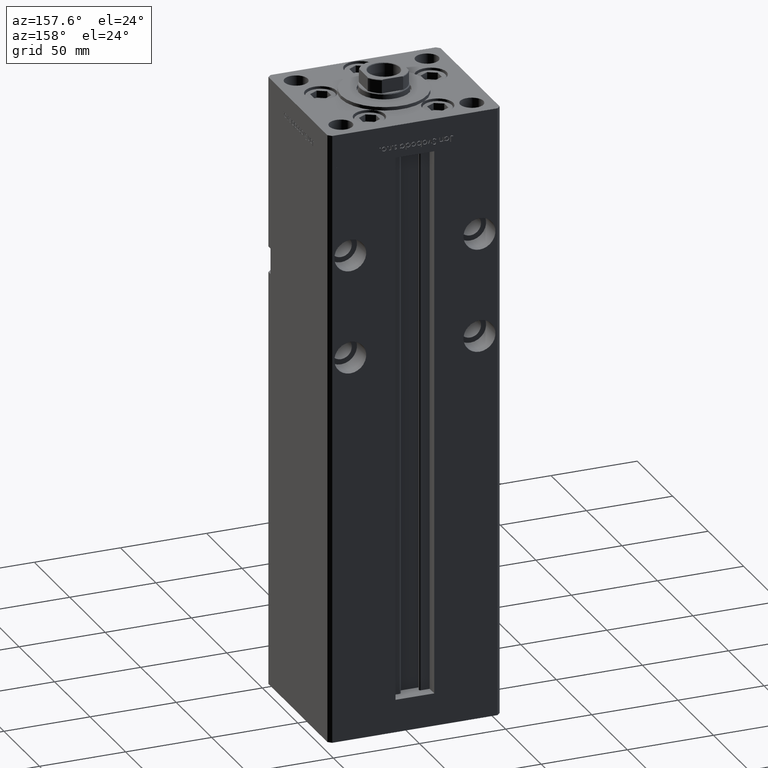
[diagram: clean part render]
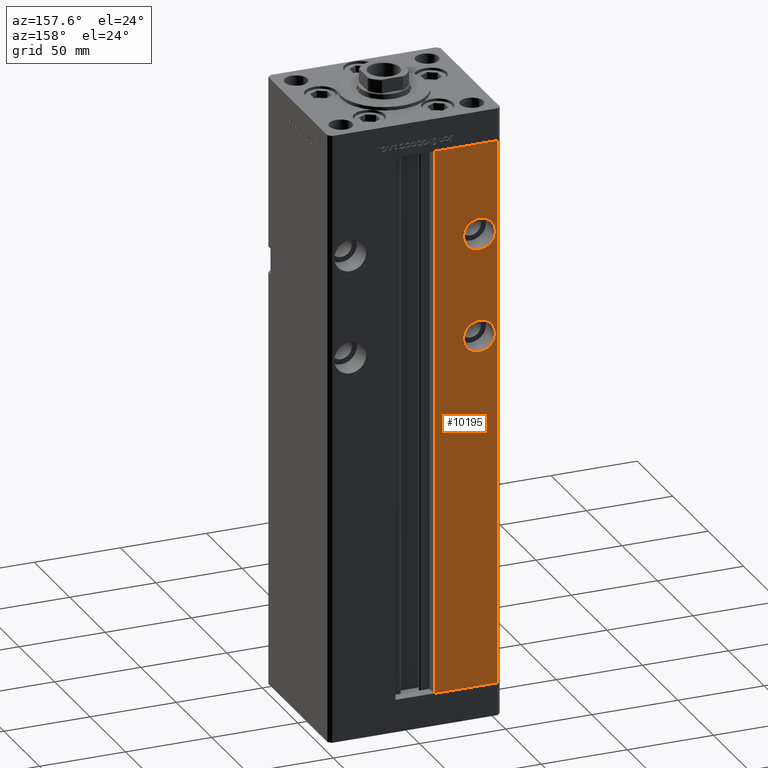
[diagram: same view with one face highlighted and labeled with its STEP entity id]
A machine part, auxiliary view. The second image highlights one B-rep face of the part: STEP entity #10195.
In plain terms, the highlighted planar face has unit normal (0, -1, 0).
Its self-contained STEP definition (entity closure, byte-faithful):
#553 = CARTESIAN_POINT ( 'NONE',  ( -37.50000000000000000, 43.50000000000000000, 265.5000000000000000 ) ) ;
#641 = VERTEX_POINT ( 'NONE', #5674 ) ;
#815 = DIRECTION ( 'NONE',  ( 0.000000000000000000, -0.000000000000000000, -1.000000000000000000 ) ) ;
#1327 = DIRECTION ( 'NONE',  ( 0.000000000000000000, -1.000000000000000000, 0.000000000000000000 ) ) ;
#1549 = VERTEX_POINT ( 'NONE', #12447 ) ;
#1849 = PLANE ( 'NONE',  #24308 ) ;
#2871 = VERTEX_POINT ( 'NONE', #32890 ) ;
#3525 = DIRECTION ( 'NONE',  ( 0.000000000000000000, 1.000000000000000000, -0.000000000000000000 ) ) ;
#3675 = DIRECTION ( 'NONE',  ( 1.000000000000000000, 0.000000000000000000, 0.000000000000000000 ) ) ;
#3677 = VECTOR ( 'NONE', #11993, 1000.000000000000000 ) ;
#3762 = CARTESIAN_POINT ( 'NONE',  ( -37.50000000000000000, 43.50000000000000000, 274.7500000000000000 ) ) ;
#4140 = AXIS2_PLACEMENT_3D ( 'NONE', #29942, #9773, #5495 ) ;
#5495 = DIRECTION ( 'NONE',  ( 0.000000000000000000, 0.000000000000000000, 1.000000000000000000 ) ) ;
#5674 = CARTESIAN_POINT ( 'NONE',  ( -11.24999999999999645, 43.50000000000000000, 0.000000000000000000 ) ) ;
#7331 = EDGE_CURVE ( 'NONE', #18828, #25857, #8427, .T. ) ;
#7979 = ORIENTED_EDGE ( 'NONE', *, *, #23607, .F. ) ;
#8007 = EDGE_CURVE ( 'NONE', #641, #2871, #43972, .T. ) ;
#8427 = CIRCLE ( 'NONE', #27295, 9.249999999999980460 ) ;
#9773 = DIRECTION ( 'NONE',  ( 0.000000000000000000, 1.000000000000000000, 0.000000000000000000 ) ) ;
#9817 = EDGE_LOOP ( 'NONE', ( #16014, #24897, #30269, #22585 ) ) ;
#10195 = ADVANCED_FACE ( 'NONE', ( #33589, #22286, #38669 ), #1849, .F. ) ;
#10507 = CARTESIAN_POINT ( 'NONE',  ( -37.50000000000000000, 43.50000000000000000, 205.5000000000000284 ) ) ;
#11993 = DIRECTION ( 'NONE',  ( -0.000000000000000000, -0.000000000000000000, 1.000000000000000000 ) ) ;
#12447 = CARTESIAN_POINT ( 'NONE',  ( -37.50000000000000000, 43.50000000000000000, 214.7500000000000284 ) ) ;
#14288 = CARTESIAN_POINT ( 'NONE',  ( -37.50000000000000000, 43.50000000000000000, 265.5000000000000000 ) ) ;
#14562 = CARTESIAN_POINT ( 'NONE',  ( -48.00000000000000711, 43.50000000000000000, 318.5000000000000000 ) ) ;
#15230 = CARTESIAN_POINT ( 'NONE',  ( -11.24999999999999645, 43.50000000000000000, 0.000000000000000000 ) ) ;
#16014 = ORIENTED_EDGE ( 'NONE', *, *, #51168, .T. ) ;
#16951 = CIRCLE ( 'NONE', #48713, 9.249999999999980460 ) ;
#17420 = CARTESIAN_POINT ( 'NONE',  ( -11.24999999999999645, 43.50000000000000000, 0.000000000000000000 ) ) ;
#18828 = VERTEX_POINT ( 'NONE', #26824 ) ;
#19989 = CARTESIAN_POINT ( 'NONE',  ( -37.50000000000000000, 43.50000000000000000, 196.2500000000000000 ) ) ;
#20061 = LINE ( 'NONE', #34204, #22669 ) ;
#20477 = CARTESIAN_POINT ( 'NONE',  ( -48.00000000000000711, 43.50000000000000000, 0.000000000000000000 ) ) ;
#20782 = EDGE_CURVE ( 'NONE', #25857, #18828, #16951, .T. ) ;
#21471 = ORIENTED_EDGE ( 'NONE', *, *, #24876, .F. ) ;
#22286 = FACE_BOUND ( 'NONE', #26351, .T. ) ;
#22585 = ORIENTED_EDGE ( 'NONE', *, *, #41956, .F. ) ;
#22669 = VECTOR ( 'NONE', #3675, 1000.000000000000000 ) ;
#23607 = EDGE_CURVE ( 'NONE', #42362, #1549, #26440, .T. ) ;
#24308 = AXIS2_PLACEMENT_3D ( 'NONE', #51033, #1327, #815 ) ;
#24876 = EDGE_CURVE ( 'NONE', #1549, #42362, #32355, .T. ) ;
#24897 = ORIENTED_EDGE ( 'NONE', *, *, #8007, .F. ) ;
#25857 = VERTEX_POINT ( 'NONE', #3762 ) ;
#26059 = VECTOR ( 'NONE', #49952, 1000.000000000000000 ) ;
#26351 = EDGE_LOOP ( 'NONE', ( #21471, #7979 ) ) ;
#26440 = CIRCLE ( 'NONE', #4140, 9.250000000000008882 ) ;
#26824 = CARTESIAN_POINT ( 'NONE',  ( -37.50000000000000000, 43.50000000000000000, 256.2500000000000568 ) ) ;
#27295 = AXIS2_PLACEMENT_3D ( 'NONE', #14288, #30689, #39814 ) ;
#29777 = LINE ( 'NONE', #17420, #26059 ) ;
#29942 = CARTESIAN_POINT ( 'NONE',  ( -37.50000000000000000, 43.50000000000000000, 205.5000000000000284 ) ) ;
#30232 = VECTOR ( 'NONE', #45959, 1000.000000000000000 ) ;
#30269 = ORIENTED_EDGE ( 'NONE', *, *, #44378, .T. ) ;
#30689 = DIRECTION ( 'NONE',  ( 0.000000000000000000, 1.000000000000000000, -0.000000000000000000 ) ) ;
#32355 = CIRCLE ( 'NONE', #35805, 9.250000000000008882 ) ;
#32890 = CARTESIAN_POINT ( 'NONE',  ( -11.24999999999999645, 43.50000000000000000, 318.5000000000000000 ) ) ;
#33589 = FACE_BOUND ( 'NONE', #41672, .T. ) ;
#33918 = DIRECTION ( 'NONE',  ( 0.000000000000000000, 1.000000000000000000, 0.000000000000000000 ) ) ;
#34204 = CARTESIAN_POINT ( 'NONE',  ( -11.24999999999999645, 43.50000000000000000, 318.5000000000000000 ) ) ;
#35805 = AXIS2_PLACEMENT_3D ( 'NONE', #10507, #33918, #46798 ) ;
#38161 = LINE ( 'NONE', #42444, #30232 ) ;
#38669 = FACE_OUTER_BOUND ( 'NONE', #9817, .T. ) ;
#39814 = DIRECTION ( 'NONE',  ( 0.000000000000000000, 0.000000000000000000, -1.000000000000000000 ) ) ;
#41672 = EDGE_LOOP ( 'NONE', ( #44920, #52394 ) ) ;
#41956 = EDGE_CURVE ( 'NONE', #51317, #51374, #38161, .T. ) ;
#42362 = VERTEX_POINT ( 'NONE', #19989 ) ;
#42444 = CARTESIAN_POINT ( 'NONE',  ( -48.00000000000000711, 43.50000000000000000, 318.5000000000000000 ) ) ;
#43972 = LINE ( 'NONE', #15230, #3677 ) ;
#44378 = EDGE_CURVE ( 'NONE', #641, #51374, #29777, .T. ) ;
#44920 = ORIENTED_EDGE ( 'NONE', *, *, #20782, .F. ) ;
#45959 = DIRECTION ( 'NONE',  ( -0.000000000000000000, -0.000000000000000000, -1.000000000000000000 ) ) ;
#46798 = DIRECTION ( 'NONE',  ( 0.000000000000000000, 0.000000000000000000, 1.000000000000000000 ) ) ;
#48713 = AXIS2_PLACEMENT_3D ( 'NONE', #553, #3525, #52968 ) ;
#49952 = DIRECTION ( 'NONE',  ( -1.000000000000000000, 0.000000000000000000, 0.000000000000000000 ) ) ;
#51033 = CARTESIAN_POINT ( 'NONE',  ( -11.24999999999999645, 43.50000000000000000, 318.5000000000000000 ) ) ;
#51168 = EDGE_CURVE ( 'NONE', #51317, #2871, #20061, .T. ) ;
#51317 = VERTEX_POINT ( 'NONE', #14562 ) ;
#51374 = VERTEX_POINT ( 'NONE', #20477 ) ;
#52394 = ORIENTED_EDGE ( 'NONE', *, *, #7331, .F. ) ;
#52968 = DIRECTION ( 'NONE',  ( 0.000000000000000000, 0.000000000000000000, -1.000000000000000000 ) ) ;